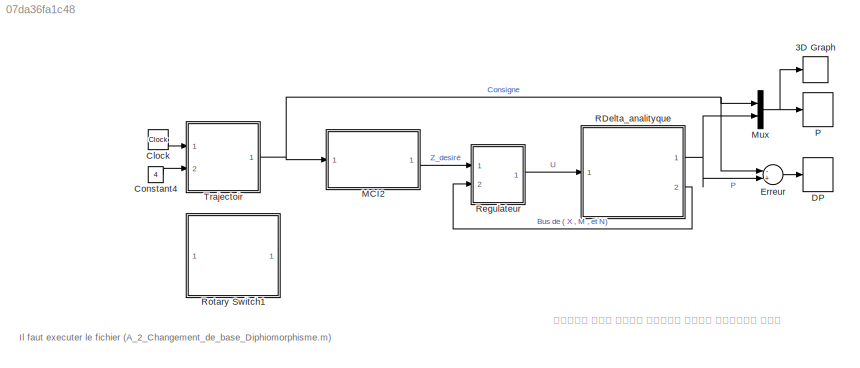
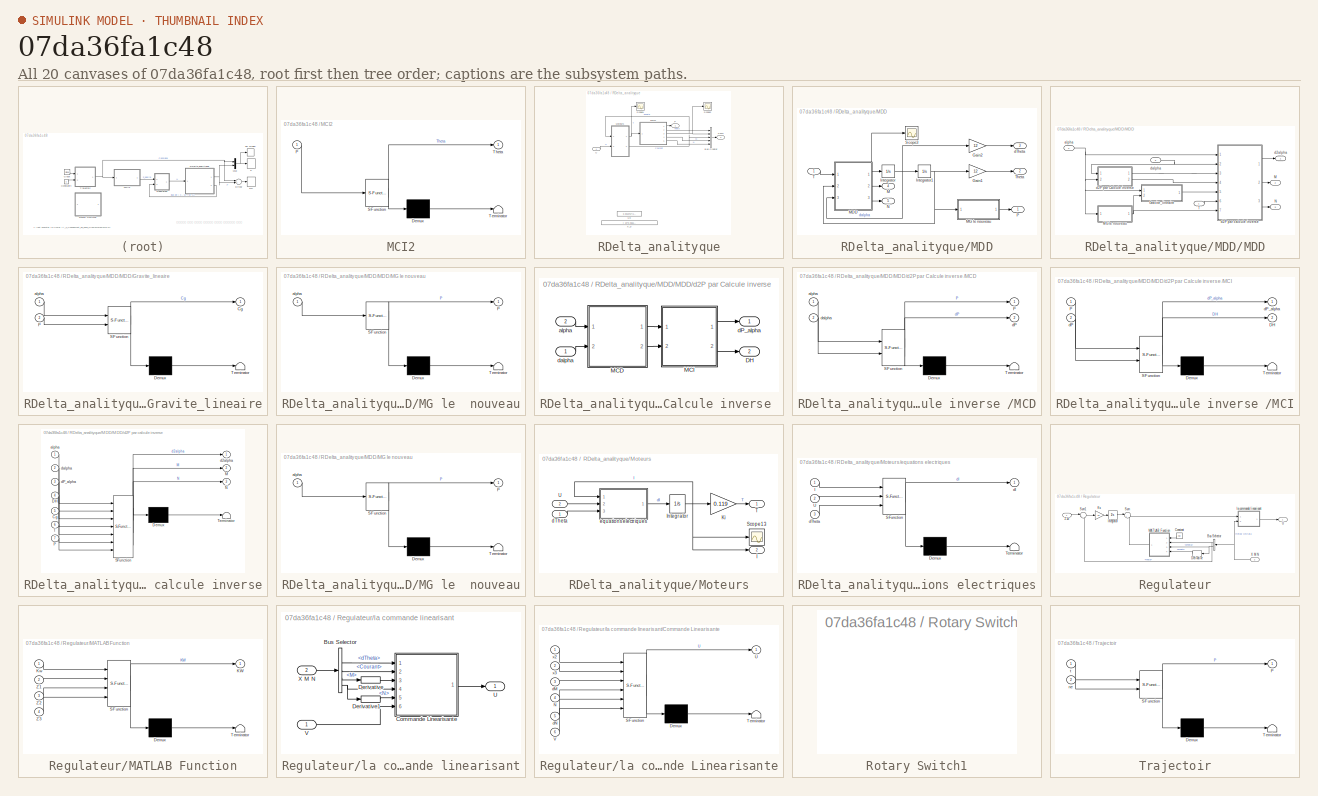
[diagram: thumbnail index - all 20 canvases of the model, root first then tree order]
MODEL slx_07da36fa1c48
KIND model
CONFIG AbsTol = auto
CONFIG FixedStep = auto
CONFIG MaxStep = 0.001
CONFIG MinStep = auto
CONFIG RelTol = 1e-3
CONFIG SampleTimeConstraint = Unconstrained
CONFIG Solver = ode45
CONFIG SolverMode = Auto
CONFIG SolverName = ode45
CONFIG StartTime = 0.0
CONFIG StopTime = 15
BLOCK [S-Function] 3D Graph
  CopyFcn = sfun3d([],[],[],'CopyBlock')
  DeleteFcn = sfun3d([],[],[],'DeleteBlock')
  FunctionName = sfun3d
  LoadFcn = sfun3d([],[],[],'LoadBlock')
  NameChangeFcn = sfun3d([],[],[],'NameChange')
  Parameters = ax,T,np,cp,gd,ls,mk
  Ports = [1]
  StartFcn = sfun3d([],[],[],'Start')
  StopFcn = sfun3d([],[],[],'Stop')
BLOCK [Clock] Clock
BLOCK [Constant] Constant4
  Value = 4
BLOCK [TimeScope] DP
  DefaultConfigurationName = spbscopes.TimeScopeBlockCfg
  NumInputPorts = 1
  Ports = [1]
  ScopeSpecificationString = spbscopes.TimeScopeBlockCfg('CurrentConfiguration', extmgr.ConfigurationSet(extmgr.Configuration('Core','General UI',true,'FigureColor',[1 1 1]),extmgr.Configuration('Core','Source UI',true),extmgr.Configuration('Sources','WiredSimulink',true,'DataLoggingVariableName','ScopeData1'),extmgr.Configuration('Visuals','Time Domain',true,'DisplayPropertyDefaults',struct('MinYLimReal','-0.00521338','MaxYL...<+2470ch>
  UserDataPersistent = on
BLOCK [Sum] Erreur
  InputSameDT = off
  Inputs = -+
  OutDataTypeStr = Inherit: Inherit via internal rule
  Ports = [2, 1]
  SaturateOnIntegerOverflow = off
BLOCK [SubSystem] MCI2
  ErrorFcn = Stateflow.Translate.translate
  PermitHierarchicalResolution = ExplicitOnly
  Ports = [1, 1]
  RequestExecContextInheritance = off
  SFBlockType = MATLAB Function
  TreatAsAtomicUnit = on
BLOCK [Demux] MCI2/ Demux 
  Outputs = 1
  Ports = [1, 1]
BLOCK [S-Function] MCI2/ SFunction 
  EnableBusSupport = on
  FunctionName = sf_sfun
  PortCounts = [1 2]
  Ports = [1, 2]
  Tag = Stateflow S-Function Commande_3_Changement_de_base_et_diffeomorphisme_ 2
BLOCK [Terminator] MCI2/ Terminator 
BLOCK [Inport] MCI2/P
  IconDisplay = Port number
BLOCK [Outport] MCI2/Theta
  IconDisplay = Port number
BLOCK [Mux] Mux
  DisplayOption = bar
  Inputs = 2
  Ports = [2, 1]
BLOCK [TimeScope] P
  DefaultConfigurationName = spbscopes.TimeScopeBlockCfg
  NumInputPorts = 1
  Ports = [1]
  ScopeSpecificationString = spbscopes.TimeScopeBlockCfg('CurrentConfiguration', extmgr.ConfigurationSet(extmgr.Configuration('Core','General UI',true,'FigureColor',[1 1 1]),extmgr.Configuration('Core','Source UI',true),extmgr.Configuration('Sources','WiredSimulink',true),extmgr.Configuration('Visuals','Time Domain',true,'DisplayPropertyDefaults',struct('MinYLimReal','-0.362505','MaxYLimReal','0.262501','YLabelReal','position...<+2495ch>
  UserDataPersistent = on
BLOCK [SubSystem] RDelta_analityque
  Ports = [1, 2]
  RequestExecContextInheritance = off
BLOCK [BusCreator] RDelta_analityque/Bus Creator
  DisplayOption = bar
  Inputs = 5
  Ports = [5, 1]
BLOCK [SubSystem] RDelta_analityque/MDD
  Ports = [1, 5]
  RequestExecContextInheritance = off
BLOCK [Gain] RDelta_analityque/MDD/Gain1
  Gain = 12
  OutDataTypeStr = Inherit: Inherit via internal rule
  ParamDataTypeStr = Inherit: Inherit via internal rule
  SaturateOnIntegerOverflow = off
BLOCK [Gain] RDelta_analityque/MDD/Gain2
  Gain = 12
  OutDataTypeStr = Inherit: Inherit via internal rule
  ParamDataTypeStr = Inherit: Inherit via internal rule
  SaturateOnIntegerOverflow = off
BLOCK [Integrator] RDelta_analityque/MDD/Integrator
  InitialCondition = [0;0;0]
  Ports = [1, 1]
BLOCK [Integrator] RDelta_analityque/MDD/Integrator1
  InitialCondition = 0.8*[1;1;1]/12
  Ports = [1, 1]
BLOCK [Outport] RDelta_analityque/MDD/M
  IconDisplay = Port number
  Port = 4
BLOCK [SubSystem] RDelta_analityque/MDD/MDD
  Ports = [3, 3]
  RequestExecContextInheritance = off
BLOCK [SubSystem] RDelta_analityque/MDD/MDD/Gravite_lineaire
  ErrorFcn = Stateflow.Translate.translate
  PermitHierarchicalResolution = ExplicitOnly
  Ports = [2, 1]
  RequestExecContextInheritance = off
  SFBlockType = MATLAB Function
  TreatAsAtomicUnit = on
BLOCK [Demux] RDelta_analityque/MDD/MDD/Gravite_lineaire/ Demux 
  Outputs = 1
  Ports = [1, 1]
BLOCK [S-Function] RDelta_analityque/MDD/MDD/Gravite_lineaire/ SFunction 
  EnableBusSupport = on
  FunctionName = sf_sfun
  PortCounts = [2 2]
  Ports = [2, 2]
  Tag = Stateflow S-Function Commande_3_Changement_de_base_et_diffeomorphisme_ 8
BLOCK [Terminator] RDelta_analityque/MDD/MDD/Gravite_lineaire/ Terminator 
BLOCK [Outport] RDelta_analityque/MDD/MDD/Gravite_lineaire/Cg
  IconDisplay = Port number
BLOCK [Inport] RDelta_analityque/MDD/MDD/Gravite_lineaire/P
  IconDisplay = Port number
  Port = 2
BLOCK [Inport] RDelta_analityque/MDD/MDD/Gravite_lineaire/alpha
  IconDisplay = Port number
BLOCK [Outport] RDelta_analityque/MDD/MDD/M
  IconDisplay = Port number
  Port = 2
BLOCK [SubSystem] RDelta_analityque/MDD/MDD/MG le  nouveau
  ErrorFcn = Stateflow.Translate.translate
  PermitHierarchicalResolution = ExplicitOnly
  Ports = [1, 1]
  RequestExecContextInheritance = off
  SFBlockType = MATLAB Function
  TreatAsAtomicUnit = on
BLOCK [Demux] RDelta_analityque/MDD/MDD/MG le  nouveau/ Demux 
  Outputs = 1
  Ports = [1, 1]
BLOCK [S-Function] RDelta_analityque/MDD/MDD/MG le  nouveau/ SFunction 
  EnableBusSupport = on
  FunctionName = sf_sfun
  PortCounts = [1 2]
  Ports = [1, 2]
  Tag = Stateflow S-Function Commande_3_Changement_de_base_et_diffeomorphisme_ 1
BLOCK [Terminator] RDelta_analityque/MDD/MDD/MG le  nouveau/ Terminator 
BLOCK [Outport] RDelta_analityque/MDD/MDD/MG le  nouveau/P
  IconDisplay = Port number
BLOCK [Inport] RDelta_analityque/MDD/MDD/MG le  nouveau/alpha
  IconDisplay = Port number
BLOCK [Outport] RDelta_analityque/MDD/MDD/N
  IconDisplay = Port number
  Port = 3
BLOCK [Inport] RDelta_analityque/MDD/MDD/T
  IconDisplay = Port number
BLOCK [Inport] RDelta_analityque/MDD/MDD/alpha
  IconDisplay = Port number
  Port = 2
BLOCK [SubSystem] RDelta_analityque/MDD/MDD/d2P par Calcule inverse 
  Ports = [2, 2]
  RequestExecContextInheritance = off
BLOCK [Outport] RDelta_analityque/MDD/MDD/d2P par Calcule inverse /DH
  IconDisplay = Port number
  Port = 2
BLOCK [SubSystem] RDelta_analityque/MDD/MDD/d2P par Calcule inverse /MCD
  ErrorFcn = Stateflow.Translate.translate
  PermitHierarchicalResolution = ExplicitOnly
  Ports = [2, 2]
  RequestExecContextInheritance = off
  SFBlockType = MATLAB Function
  TreatAsAtomicUnit = on
BLOCK [Demux] RDelta_analityque/MDD/MDD/d2P par Calcule inverse /MCD/ Demux 
  Outputs = 1
  Ports = [1, 1]
BLOCK [S-Function] RDelta_analityque/MDD/MDD/d2P par Calcule inverse /MCD/ SFunction 
  EnableBusSupport = on
  FunctionName = sf_sfun
  PortCounts = [2 3]
  Ports = [2, 3]
  Tag = Stateflow S-Function Commande_3_Changement_de_base_et_diffeomorphisme_ 3
BLOCK [Terminator] RDelta_analityque/MDD/MDD/d2P par Calcule inverse /MCD/ Terminator 
BLOCK [Outport] RDelta_analityque/MDD/MDD/d2P par Calcule inverse /MCD/P
  IconDisplay = Port number
BLOCK [Inport] RDelta_analityque/MDD/MDD/d2P par Calcule inverse /MCD/alpha
  IconDisplay = Port number
BLOCK [Outport] RDelta_analityque/MDD/MDD/d2P par Calcule inverse /MCD/dP
  IconDisplay = Port number
  Port = 2
BLOCK [Inport] RDelta_analityque/MDD/MDD/d2P par Calcule inverse /MCD/dalpha
  IconDisplay = Port number
  Port = 2
BLOCK [SubSystem] RDelta_analityque/MDD/MDD/d2P par Calcule inverse /MCI
  ErrorFcn = Stateflow.Translate.translate
  PermitHierarchicalResolution = ExplicitOnly
  Ports = [2, 2]
  RequestExecContextInheritance = off
  SFBlockType = MATLAB Function
  TreatAsAtomicUnit = on
BLOCK [Demux] RDelta_analityque/MDD/MDD/d2P par Calcule inverse /MCI/ Demux 
  Outputs = 1
  Ports = [1, 1]
BLOCK [S-Function] RDelta_analityque/MDD/MDD/d2P par Calcule inverse /MCI/ SFunction 
  EnableBusSupport = on
  FunctionName = sf_sfun
  PortCounts = [2 3]
  Ports = [2, 3]
  Tag = Stateflow S-Function Commande_3_Changement_de_base_et_diffeomorphisme_ 14
BLOCK [Terminator] RDelta_analityque/MDD/MDD/d2P par Calcule inverse /MCI/ Terminator 
BLOCK [Outport] RDelta_analityque/MDD/MDD/d2P par Calcule inverse /MCI/DH
  IconDisplay = Port number
  Port = 2
BLOCK [Inport] RDelta_analityque/MDD/MDD/d2P par Calcule inverse /MCI/P
  IconDisplay = Port number
BLOCK [Inport] RDelta_analityque/MDD/MDD/d2P par Calcule inverse /MCI/dP
  IconDisplay = Port number
  Port = 2
BLOCK [Outport] RDelta_analityque/MDD/MDD/d2P par Calcule inverse /MCI/dP_alpha
  IconDisplay = Port number
BLOCK [Inport] RDelta_analityque/MDD/MDD/d2P par Calcule inverse /alpha
  IconDisplay = Port number
  Port = 2
BLOCK [Outport] RDelta_analityque/MDD/MDD/d2P par Calcule inverse /dP_alpha
  IconDisplay = Port number
BLOCK [Inport] RDelta_analityque/MDD/MDD/d2P par Calcule inverse /dalpha
  IconDisplay = Port number
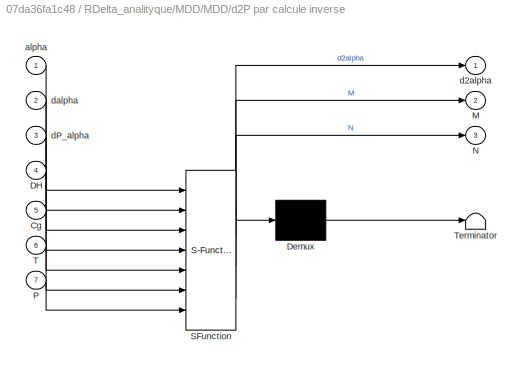
BLOCK [SubSystem] RDelta_analityque/MDD/MDD/d2P par calcule inverse
  ErrorFcn = Stateflow.Translate.translate
  PermitHierarchicalResolution = ExplicitOnly
  Ports = [7, 3]
  RequestExecContextInheritance = off
  SFBlockType = MATLAB Function
  TreatAsAtomicUnit = on
BLOCK [Demux] RDelta_analityque/MDD/MDD/d2P par calcule inverse/ Demux 
  Outputs = 1
  Ports = [1, 1]
BLOCK [S-Function] RDelta_analityque/MDD/MDD/d2P par calcule inverse/ SFunction 
  EnableBusSupport = on
  FunctionName = sf_sfun
  PortCounts = [7 4]
  Ports = [7, 4]
  Tag = Stateflow S-Function Commande_3_Changement_de_base_et_diffeomorphisme_ 15
BLOCK [Terminator] RDelta_analityque/MDD/MDD/d2P par calcule inverse/ Terminator 
BLOCK [Inport] RDelta_analityque/MDD/MDD/d2P par calcule inverse/Cg
  IconDisplay = Port number
  Port = 5
BLOCK [Inport] RDelta_analityque/MDD/MDD/d2P par calcule inverse/DH
  IconDisplay = Port number
  Port = 4
BLOCK [Outport] RDelta_analityque/MDD/MDD/d2P par calcule inverse/M
  IconDisplay = Port number
  Port = 2
BLOCK [Outport] RDelta_analityque/MDD/MDD/d2P par calcule inverse/N
  IconDisplay = Port number
  Port = 3
BLOCK [Inport] RDelta_analityque/MDD/MDD/d2P par calcule inverse/P
  IconDisplay = Port number
  Port = 7
BLOCK [Inport] RDelta_analityque/MDD/MDD/d2P par calcule inverse/T
  IconDisplay = Port number
  Port = 6
BLOCK [Inport] RDelta_analityque/MDD/MDD/d2P par calcule inverse/alpha
  IconDisplay = Port number
BLOCK [Outport] RDelta_analityque/MDD/MDD/d2P par calcule inverse/d2alpha
  IconDisplay = Port number
BLOCK [Inport] RDelta_analityque/MDD/MDD/d2P par calcule inverse/dP_alpha
  IconDisplay = Port number
  Port = 3
BLOCK [Inport] RDelta_analityque/MDD/MDD/d2P par calcule inverse/dalpha
  IconDisplay = Port number
  Port = 2
BLOCK [Outport] RDelta_analityque/MDD/MDD/d2alpha
  IconDisplay = Port number
BLOCK [Inport] RDelta_analityque/MDD/MDD/dalpha
  IconDisplay = Port number
  Port = 3
BLOCK [SubSystem] RDelta_analityque/MDD/MG le  nouveau
  ErrorFcn = Stateflow.Translate.translate
  PermitHierarchicalResolution = ExplicitOnly
  Ports = [1, 1]
  RequestExecContextInheritance = off
  SFBlockType = MATLAB Function
  TreatAsAtomicUnit = on
BLOCK [Demux] RDelta_analityque/MDD/MG le  nouveau/ Demux 
  Outputs = 1
  Ports = [1, 1]
BLOCK [S-Function] RDelta_analityque/MDD/MG le  nouveau/ SFunction 
  EnableBusSupport = on
  FunctionName = sf_sfun
  PortCounts = [1 2]
  Ports = [1, 2]
  Tag = Stateflow S-Function Commande_3_Changement_de_base_et_diffeomorphisme_ 16
BLOCK [Terminator] RDelta_analityque/MDD/MG le  nouveau/ Terminator 
BLOCK [Outport] RDelta_analityque/MDD/MG le  nouveau/P
  IconDisplay = Port number
BLOCK [Inport] RDelta_analityque/MDD/MG le  nouveau/alpha
  IconDisplay = Port number
BLOCK [Outport] RDelta_analityque/MDD/N
  IconDisplay = Port number
  Port = 5
BLOCK [Outport] RDelta_analityque/MDD/P
  IconDisplay = Port number
BLOCK [Scope] RDelta_analityque/MDD/Scope3
  Floating = off
  LimitDataPoints = off
  NumInputPorts = 1
  Ports = [1]
  SaveName = ScopeData2
  TimeRange = 2.077341948455237
  YMax = 0.00275
  YMin = 0.00075
BLOCK [Inport] RDelta_analityque/MDD/T
  IconDisplay = Port number
BLOCK [Outport] RDelta_analityque/MDD/Theta
  IconDisplay = Port number
  Port = 2
BLOCK [Outport] RDelta_analityque/MDD/dTheta
  IconDisplay = Port number
  Port = 3
BLOCK [SubSystem] RDelta_analityque/Moteurs
  Ports = [2, 2]
  RequestExecContextInheritance = off
BLOCK [Outport] RDelta_analityque/Moteurs/I
  IconDisplay = Port number
  Port = 2
BLOCK [Integrator] RDelta_analityque/Moteurs/Integrator
  InitialCondition = 0*[1;1;1]
  Ports = [1, 1]
BLOCK [Gain] RDelta_analityque/Moteurs/Ki
  Gain = 0.119
  OutDataTypeStr = Inherit: Inherit via internal rule
  ParamDataTypeStr = Inherit: Inherit via internal rule
  SaturateOnIntegerOverflow = off
BLOCK [Scope] RDelta_analityque/Moteurs/Scope13
  Floating = off
  LimitDataPoints = off
  NumInputPorts = 1
  Ports = [1]
  SaveName = ScopeData24
  TimeRange = 0.507510643892459
  YMax = 1000
  YMin = -1000
BLOCK [Outport] RDelta_analityque/Moteurs/T
  IconDisplay = Port number
BLOCK [Inport] RDelta_analityque/Moteurs/U
  IconDisplay = Port number
  Port = 2
BLOCK [Inport] RDelta_analityque/Moteurs/dTheta
  IconDisplay = Port number
BLOCK [SubSystem] RDelta_analityque/Moteurs/equations electriques
  ErrorFcn = Stateflow.Translate.translate
  PermitHierarchicalResolution = ExplicitOnly
  Ports = [3, 1]
  RequestExecContextInheritance = off
  SFBlockType = MATLAB Function
  TreatAsAtomicUnit = on
BLOCK [Demux] RDelta_analityque/Moteurs/equations electriques/ Demux 
  Outputs = 1
  Ports = [1, 1]
BLOCK [S-Function] RDelta_analityque/Moteurs/equations electriques/ SFunction 
  EnableBusSupport = on
  FunctionName = sf_sfun
  PortCounts = [3 2]
  Ports = [3, 2]
  Tag = Stateflow S-Function Commande_3_Changement_de_base_et_diffeomorphisme_ 26
BLOCK [Terminator] RDelta_analityque/Moteurs/equations electriques/ Terminator 
BLOCK [Inport] RDelta_analityque/Moteurs/equations electriques/I
  IconDisplay = Port number
BLOCK [Inport] RDelta_analityque/Moteurs/equations electriques/U
  IconDisplay = Port number
  Port = 2
BLOCK [Outport] RDelta_analityque/Moteurs/equations electriques/dI
  IconDisplay = Port number
BLOCK [Inport] RDelta_analityque/Moteurs/equations electriques/dTheta
  IconDisplay = Port number
  Port = 3
BLOCK [Outport] RDelta_analityque/P
  IconDisplay = Port number
BLOCK [Scope] RDelta_analityque/Scope1
  Floating = off
  LimitDataPoints = off
  NumInputPorts = 1
  Ports = [1]
  SaveName = ScopeData3
  YMax = 0.175
  YMin = -0.2
BLOCK [Scope] RDelta_analityque/Scope2
  Floating = off
  LimitDataPoints = off
  NumInputPorts = 1
  Ports = [1]
  SaveName = ScopeData7
  YMax = 0.774531
  YMin = 0.774525
BLOCK [Inport] RDelta_analityque/U
  IconDisplay = Port number
BLOCK [Constant] RDelta_analityque/U0
  Value = 0.001041*[1;1;1]
BLOCK [Outport] RDelta_analityque/XMN
  IconDisplay = Port number
  Port = 2
BLOCK [Constant] RDelta_analityque/X_0
  Value = [ 10*0.0651*[1;1;1] ;[0;0;0];-0.1041*[1;1;1] ]
BLOCK [SubSystem] Regulateur
  Ports = [2, 1]
  RequestExecContextInheritance = off
BLOCK [BusSelector] Regulateur/Bus Selector
  OutputSignals = Theta,dTheta
  Ports = [1, 2]
BLOCK [Constant] Regulateur/Constant
  Value = Kw
BLOCK [Derivative] Regulateur/Derivative
BLOCK [Integrator] Regulateur/Integrator
  Ports = [1, 1]
BLOCK [Gain] Regulateur/Ks
  Gain = Ks
  OutDataTypeStr = Inherit: Inherit via internal rule
  ParamDataTypeStr = Inherit: Inherit via internal rule
  SaturateOnIntegerOverflow = off
BLOCK [SubSystem] Regulateur/MATLAB Function
  ErrorFcn = Stateflow.Translate.translate
  PermitHierarchicalResolution = ExplicitOnly
  Ports = [4, 1]
  RequestExecContextInheritance = off
  SFBlockType = MATLAB Function
  TreatAsAtomicUnit = on
BLOCK [Demux] Regulateur/MATLAB Function/ Demux 
  Outputs = 1
  Ports = [1, 1]
BLOCK [S-Function] Regulateur/MATLAB Function/ SFunction 
  EnableBusSupport = on
  FunctionName = sf_sfun
  PortCounts = [4 2]
  Ports = [4, 2]
  Tag = Stateflow S-Function Commande_3_Changement_de_base_et_diffeomorphisme_ 5
BLOCK [Terminator] Regulateur/MATLAB Function/ Terminator 
BLOCK [Outport] Regulateur/MATLAB Function/KW
  IconDisplay = Port number
BLOCK [Inport] Regulateur/MATLAB Function/Kw
  IconDisplay = Port number
BLOCK [Inport] Regulateur/MATLAB Function/Z1
  IconDisplay = Port number
  Port = 2
BLOCK [Inport] Regulateur/MATLAB Function/Z2
  IconDisplay = Port number
  Port = 3
BLOCK [Inport] Regulateur/MATLAB Function/Z3
  IconDisplay = Port number
  Port = 4
BLOCK [Sum] Regulateur/Sum
  IconShape = round
  InputSameDT = off
  Inputs = |+-
  OutDataTypeStr = Inherit: Inherit via internal rule
  Ports = [2, 1]
  SaturateOnIntegerOverflow = off
BLOCK [Sum] Regulateur/Sum1
  IconShape = round
  InputSameDT = off
  Inputs = |+-
  OutDataTypeStr = Inherit: Inherit via internal rule
  Ports = [2, 1]
  SaturateOnIntegerOverflow = off
BLOCK [Outport] Regulateur/U
  IconDisplay = Port number
BLOCK [Inport] Regulateur/X M N
  IconDisplay = Port number
  Port = 2
BLOCK [Inport] Regulateur/Z1d
  IconDisplay = Port number
BLOCK [SubSystem] Regulateur/la commande linearisant
  Ports = [2, 1]
  RequestExecContextInheritance = off
BLOCK [BusSelector] Regulateur/la commande linearisant/Bus Selector
  OutputSignals = Theta,dTheta,Courant,M,N
  Ports = [1, 5]
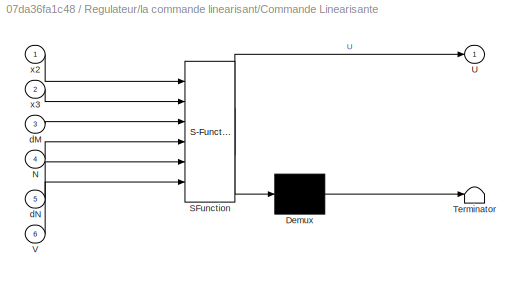
BLOCK [SubSystem] Regulateur/la commande linearisant/Commande Linearisante
  ErrorFcn = Stateflow.Translate.translate
  PermitHierarchicalResolution = ExplicitOnly
  Ports = [6, 1]
  RequestExecContextInheritance = off
  SFBlockType = MATLAB Function
  TreatAsAtomicUnit = on
BLOCK [Demux] Regulateur/la commande linearisant/Commande Linearisante/ Demux 
  Outputs = 1
  Ports = [1, 1]
BLOCK [S-Function] Regulateur/la commande linearisant/Commande Linearisante/ SFunction 
  EnableBusSupport = on
  FunctionName = sf_sfun
  PortCounts = [6 2]
  Ports = [6, 2]
  Tag = Stateflow S-Function Commande_3_Changement_de_base_et_diffeomorphisme_ 4
BLOCK [Terminator] Regulateur/la commande linearisant/Commande Linearisante/ Terminator 
BLOCK [Inport] Regulateur/la commande linearisant/Commande Linearisante/N
  IconDisplay = Port number
  Port = 4
BLOCK [Outport] Regulateur/la commande linearisant/Commande Linearisante/U
  IconDisplay = Port number
BLOCK [Inport] Regulateur/la commande linearisant/Commande Linearisante/V
  IconDisplay = Port number
  Port = 6
BLOCK [Inport] Regulateur/la commande linearisant/Commande Linearisante/dM
  IconDisplay = Port number
  Port = 3
BLOCK [Inport] Regulateur/la commande linearisant/Commande Linearisante/dN
  IconDisplay = Port number
  Port = 5
BLOCK [Inport] Regulateur/la commande linearisant/Commande Linearisante/x2
  IconDisplay = Port number
BLOCK [Inport] Regulateur/la commande linearisant/Commande Linearisante/x3
  IconDisplay = Port number
  Port = 2
BLOCK [Derivative] Regulateur/la commande linearisant/Derivative
BLOCK [Derivative] Regulateur/la commande linearisant/Derivative1
BLOCK [Outport] Regulateur/la commande linearisant/U
  IconDisplay = Port number
BLOCK [Inport] Regulateur/la commande linearisant/V
  IconDisplay = Port number
BLOCK [Inport] Regulateur/la commande linearisant/X M N
  IconDisplay = Port number
  Port = 2
BLOCK [SubSystem] Rotary Switch1
  DialogController = hmiCreateDDGDialog
  IsWebBlock = on
  MaskHideContents = on
  Ports = []
  RequestExecContextInheritance = off
BLOCK [SubSystem] Trajectoir
  ErrorFcn = Stateflow.Translate.translate
  PermitHierarchicalResolution = ExplicitOnly
  Ports = [2, 1]
  RequestExecContextInheritance = off
  SFBlockType = MATLAB Function
  TreatAsAtomicUnit = on
BLOCK [Demux] Trajectoir/ Demux 
  Outputs = 1
  Ports = [1, 1]
BLOCK [S-Function] Trajectoir/ SFunction 
  EnableBusSupport = on
  FunctionName = sf_sfun
  PortCounts = [2 2]
  Ports = [2, 2]
  Tag = Stateflow S-Function Commande_3_Changement_de_base_et_diffeomorphisme_ 23
BLOCK [Terminator] Trajectoir/ Terminator 
BLOCK [Outport] Trajectoir/P
  IconDisplay = Port number
BLOCK [Inport] Trajectoir/ne
  IconDisplay = Port number
  Port = 2
BLOCK [Inport] Trajectoir/t
  IconDisplay = Port number
ANNOTATION (root): Il faut executer le fichier (A_2_Changement_de_base_Diphiomorphisme.m)
ANNOTATION (root): الحمد لله حمدا كثيرا طيبا مباركا فيه
LINE Clock:1 -> Trajectoir:1
LINE Constant4:1 -> Trajectoir:2
LINE Erreur:1 -> DP:1
LINE MCI2:1 -> Regulateur:1
NET Mux:1 -> 3D Graph:1, P:1
LINE RDelta_analityque/Bus Creator:1 -> RDelta_analityque/XMN:1
LINE RDelta_analityque/MDD/Gain1:1 -> RDelta_analityque/MDD/Theta:1
LINE RDelta_analityque/MDD/Gain2:1 -> RDelta_analityque/MDD/dTheta:1
NET RDelta_analityque/MDD/Integrator1:1 -> RDelta_analityque/MDD/Gain1:1, RDelta_analityque/MDD/MDD:2, RDelta_analityque/MDD/MG le  nouveau:1
NET RDelta_analityque/MDD/Integrator:1 -> RDelta_analityque/MDD/Gain2:1, RDelta_analityque/MDD/Integrator1:1, RDelta_analityque/MDD/MDD:3
LINE RDelta_analityque/MDD/MDD/Gravite_lineaire:1 -> RDelta_analityque/MDD/MDD/d2P par calcule inverse:5
NET RDelta_analityque/MDD/MDD/MG le  nouveau:1 -> RDelta_analityque/MDD/MDD/Gravite_lineaire:2, RDelta_analityque/MDD/MDD/d2P par calcule inverse:7
LINE RDelta_analityque/MDD/MDD/T:1 -> RDelta_analityque/MDD/MDD/d2P par calcule inverse:6
NET RDelta_analityque/MDD/MDD/alpha:1 -> RDelta_analityque/MDD/MDD/Gravite_lineaire:1, RDelta_analityque/MDD/MDD/MG le  nouveau:1, RDelta_analityque/MDD/MDD/d2P par Calcule inverse :2, RDelta_analityque/MDD/MDD/d2P par calcule inverse:1
LINE RDelta_analityque/MDD/MDD/d2P par Calcule inverse /MCD:1 -> RDelta_analityque/MDD/MDD/d2P par Calcule inverse /MCI:1
LINE RDelta_analityque/MDD/MDD/d2P par Calcule inverse /MCD:2 -> RDelta_analityque/MDD/MDD/d2P par Calcule inverse /MCI:2
LINE RDelta_analityque/MDD/MDD/d2P par Calcule inverse /MCI:1 -> RDelta_analityque/MDD/MDD/d2P par Calcule inverse /dP_alpha:1
LINE RDelta_analityque/MDD/MDD/d2P par Calcule inverse /MCI:2 -> RDelta_analityque/MDD/MDD/d2P par Calcule inverse /DH:1
LINE RDelta_analityque/MDD/MDD/d2P par Calcule inverse /alpha:1 -> RDelta_analityque/MDD/MDD/d2P par Calcule inverse /MCD:1
LINE RDelta_analityque/MDD/MDD/d2P par Calcule inverse /dalpha:1 -> RDelta_analityque/MDD/MDD/d2P par Calcule inverse /MCD:2
LINE RDelta_analityque/MDD/MDD/d2P par Calcule inverse :1 -> RDelta_analityque/MDD/MDD/d2P par calcule inverse:3
LINE RDelta_analityque/MDD/MDD/d2P par Calcule inverse :2 -> RDelta_analityque/MDD/MDD/d2P par calcule inverse:4
LINE RDelta_analityque/MDD/MDD/d2P par calcule inverse:1 -> RDelta_analityque/MDD/MDD/d2alpha:1
LINE RDelta_analityque/MDD/MDD/d2P par calcule inverse:2 -> RDelta_analityque/MDD/MDD/M:1
LINE RDelta_analityque/MDD/MDD/d2P par calcule inverse:3 -> RDelta_analityque/MDD/MDD/N:1
NET RDelta_analityque/MDD/MDD/dalpha:1 -> RDelta_analityque/MDD/MDD/d2P par Calcule inverse :1, RDelta_analityque/MDD/MDD/d2P par calcule inverse:2
NET RDelta_analityque/MDD/MDD:1 -> RDelta_analityque/MDD/Integrator:1, RDelta_analityque/MDD/Scope3:1
LINE RDelta_analityque/MDD/MDD:2 -> RDelta_analityque/MDD/M:1
LINE RDelta_analityque/MDD/MDD:3 -> RDelta_analityque/MDD/N:1
LINE RDelta_analityque/MDD/MG le  nouveau:1 -> RDelta_analityque/MDD/P:1
LINE RDelta_analityque/MDD/T:1 -> RDelta_analityque/MDD/MDD:1
LINE RDelta_analityque/MDD:1 -> RDelta_analityque/P:1
LINE RDelta_analityque/MDD:2 -> RDelta_analityque/Bus Creator:1
NET RDelta_analityque/MDD:3 -> RDelta_analityque/Bus Creator:2, RDelta_analityque/Moteurs:1, RDelta_analityque/Scope2:1
LINE RDelta_analityque/MDD:4 -> RDelta_analityque/Bus Creator:4
LINE RDelta_analityque/MDD:5 -> RDelta_analityque/Bus Creator:5
NET RDelta_analityque/Moteurs/Integrator:1 -> RDelta_analityque/Moteurs/I:1, RDelta_analityque/Moteurs/Ki:1, RDelta_analityque/Moteurs/Scope13:1, RDelta_analityque/Moteurs/equations electriques:1
LINE RDelta_analityque/Moteurs/Ki:1 -> RDelta_analityque/Moteurs/T:1
LINE RDelta_analityque/Moteurs/U:1 -> RDelta_analityque/Moteurs/equations electriques:2
LINE RDelta_analityque/Moteurs/dTheta:1 -> RDelta_analityque/Moteurs/equations electriques:3
LINE RDelta_analityque/Moteurs/equations electriques:1 -> RDelta_analityque/Moteurs/Integrator:1
NET RDelta_analityque/Moteurs:1 -> RDelta_analityque/MDD:1, RDelta_analityque/Scope1:1
LINE RDelta_analityque/Moteurs:2 -> RDelta_analityque/Bus Creator:3
LINE RDelta_analityque/U:1 -> RDelta_analityque/Moteurs:2
NET RDelta_analityque:1 -> Erreur:2, Mux:2
LINE RDelta_analityque:2 -> Regulateur:2
NET Regulateur/Bus Selector:1 -> Regulateur/MATLAB Function:2, Regulateur/Sum1:2
NET Regulateur/Bus Selector:2 -> Regulateur/Derivative:1, Regulateur/MATLAB Function:3
LINE Regulateur/Constant:1 -> Regulateur/MATLAB Function:1
LINE Regulateur/Derivative:1 -> Regulateur/MATLAB Function:4
LINE Regulateur/Integrator:1 -> Regulateur/Sum:1
LINE Regulateur/Ks:1 -> Regulateur/Integrator:1
LINE Regulateur/MATLAB Function:1 -> Regulateur/Sum:2
LINE Regulateur/Sum1:1 -> Regulateur/Ks:1
LINE Regulateur/Sum:1 -> Regulateur/la commande linearisant:1
NET Regulateur/X M N:1 -> Regulateur/Bus Selector:1, Regulateur/la commande linearisant:2
LINE Regulateur/Z1d:1 -> Regulateur/Sum1:1
LINE Regulateur/la commande linearisant/Bus Selector:2 -> Regulateur/la commande linearisant/Commande Linearisante:1
LINE Regulateur/la commande linearisant/Bus Selector:3 -> Regulateur/la commande linearisant/Commande Linearisante:2
LINE Regulateur/la commande linearisant/Bus Selector:4 -> Regulateur/la commande linearisant/Derivative:1
NET Regulateur/la commande linearisant/Bus Selector:5 -> Regulateur/la commande linearisant/Commande Linearisante:4, Regulateur/la commande linearisant/Derivative1:1
LINE Regulateur/la commande linearisant/Commande Linearisante:1 -> Regulateur/la commande linearisant/U:1
LINE Regulateur/la commande linearisant/Derivative1:1 -> Regulateur/la commande linearisant/Commande Linearisante:5
LINE Regulateur/la commande linearisant/Derivative:1 -> Regulateur/la commande linearisant/Commande Linearisante:3
LINE Regulateur/la commande linearisant/V:1 -> Regulateur/la commande linearisant/Commande Linearisante:6
LINE Regulateur/la commande linearisant/X M N:1 -> Regulateur/la commande linearisant/Bus Selector:1
LINE Regulateur/la commande linearisant:1 -> Regulateur/U:1
LINE Regulateur:1 -> RDelta_analityque:1
NET Trajectoir:1 -> Erreur:1, MCI2:1, Mux:1
note: NET lines group one-source signal fan-out (src -> all destinations, sorted); 1:1 wires keep LINE
CHART RDelta_analityque/MDD/MDD/MG le  nouveau states=1 transitions=1
  STATE_LABEL 'eML_blk_kernel()'
  STATE_LABEL 'SCRIPT:\nfunction P =MGD(alpha)\n\n\nalpha1=alpha(1) ;alpha2=alpha(2) ; alpha3=alpha(3) ;\n\n%les constantes\nl1 = 0.19992; \nl2 = 0.334; \nr = 0.126; \nphi2 = 2*pi/3;\nphi3 = 4*pi/3;\n\n%% Les points :\nC1=[r+l1*cos(alpha1) ; 0 ; -l1*sin(alpha1) ]; \nC2=[(r+l1*cos(alpha2))*cos(phi2) ; (r+l1*cos(alpha2))*sin(phi2) ; -l1*sin(alpha2) ]; \nC3=[(r+l1*cos(alpha3))*cos(phi3) ; (r+l1*cos(alpha3))*sin(phi3) ; -l1*sin(alp...<+470ch>'
CHART MCI2 states=1 transitions=1
  STATE_LABEL 'eML_blk_kernel()'
  STATE_LABEL "SCRIPT:\n    function Theta = fcn(P)\n\n    l1 = 0.19992; \n    l2 = 0.334; \n    r = 0.126; \n    phi2 = 2*pi/3;\n    phi3 = 4*pi/3;\n\n    %% Expression de P dans Ri\n    % l'expression P1 dP1 et d2P1 ne se changent pas\n    A2=[cos(phi2) sin(phi2) 0\n        -sin(phi2) cos(phi2) 0\n        0            0      1 ]; \n    A3=[cos(phi3) sin(phi3) 0\n        -sin(phi3) cos(phi3) 0\n        0            0      1 ];...<+888ch>"
CHART RDelta_analityque/MDD/MDD/d2P par Calcule inverse
/MCD states=1 transitions=1
  STATE_LABEL 'eML_blk_kernel()'
  STATE_LABEL 'SCRIPT:\nfunction [P,dP]= fcn(alpha,dalpha)\n\n% alpha=alpha*pi/180;\n% dalpha=dalpha*pi/180;\n% d2alpha=d2alpha*pi/180;\nalpha1=alpha(1) ;alpha2=alpha(2) ; alpha3=alpha(3) ;\ndalpha1=dalpha(1) ;dalpha2=dalpha(2) ; dalpha3=dalpha(3) ;\n\n%% Remarque: une letrre majiscule signifie un point ou un vecteur \n% tandit que un miniscule signifie la norme\n%% les constantes\nl1 = 0.19992; \nl2 = 0.334; \nr = 0.126; \nph...<+1967ch>'
CHART Regulateur/la commande
 linearisant/Commande Linearisante states=1 transitions=1
  STATE_LABEL 'eML_blk_kernel()'
  STATE_LABEL 'SCRIPT:\nfunction U = fcn(x2,x3,dM,N,dN,V)\n\n%% Mode glissant\n% Les Constantes des moteurs ;\nb1 = -1.1250e+03 ;\nb2 = -99.4718 ;\nb3 =833.3333 ;\n%Constantes du Reglage :\n\nU=(N\\(-dM-dN*x3+V)-b2*x2-b1*x3)/b3 ; \n          \n'
CHART Regulateur/MATLAB Function states=1 transitions=1
  STATE_LABEL 'eML_blk_kernel()'
  STATE_LABEL "SCRIPT:\nfunction KW = RE(Kw,Z1,Z2,Z3)\n\n% Les sous systemes correspendants aux moteurs 1,2 et 3\nw1 = [Z1(1);Z2(1);Z3(1)] ; \nw2 = [Z1(2);Z2(2);Z3(2)] ;\nw3 = [Z1(3);Z2(3);Z3(3)] ;\n% Les retour d'etat\nKW1 = Kw'*w1 ; KW2 = Kw'*w2 ; KW3 = Kw'*w3 ;\nKW= [KW1 ; KW2 ; KW3 ] ;\n"
CHART RDelta_analityque/MDD/MDD/Gravite_lineaire states=1 transitions=1
  STATE_LABEL 'eML_blk_kernel()'
  STATE_LABEL 'SCRIPT:\nfunction Cg = fcn(alpha,P)\n\n    alpha1=alpha(1) ;alpha2=alpha(2) ; alpha3=alpha(3) ;\n    \n%% les constantes:\nl1 = 0.19992; \nl2 = 0.334; \nr = 0.126; \nphi2 = 2*pi/3;\nphi3 = 4*pi/3;\nA2=[cos(phi2) sin(phi2) 0 \n     -sin(phi2) cos(phi2) 0\n        0            0            1 ]; \nA3=[cos(phi3) sin(phi3) 0\n     -sin(phi3) cos(phi3) 0\n          0            0          1 ];\ng = 9.98 ;\nmBras = 0.0836...<+1603ch>'
CHART RDelta_analityque/MDD/MDD/d2P par Calcule inverse
/MCI states=1 transitions=1
  STATE_LABEL 'eML_blk_kernel()'
  STATE_LABEL "SCRIPT:\n    function [dP_alpha,DH]= fcn(P,dP)\n\n    l1 = 0.19992; \n    l2 = 0.334; \n    r = 0.126; \n    phi2 = 2*pi/3;\n    phi3 = 4*pi/3;\n\n    %% Expression de P dans Ri\n    % l'expression P1 dP1 et d2P1 ne se changent pas\n    A2=[cos(phi2) sin(phi2) 0\n        -sin(phi2) cos(phi2) 0\n        0            0      1 ]; \n    A3=[cos(phi3) sin(phi3) 0\n        -sin(phi3) cos(phi3) 0\n        0            0...<+3608ch>"
CHART RDelta_analityque/MDD/MDD/d2P par calcule inverse states=1 transitions=1
  STATE_LABEL 'eML_blk_kernel()'
  STATE_LABEL 'SCRIPT:\nfunction [d2alpha, M,N]= fcn(alpha,dalpha, dP_alpha,DH,Cg,T,P)\n\nalpha1=alpha(1) ;alpha2=alpha(2) ; alpha3=alpha(3) ;\ndalpha1=dalpha(1) ;dalpha2=dalpha(2) ; dalpha3=dalpha(3) ;\n\n%% les constantes\n    l1 = 0.19992; \n    l2 = 0.334; \n    r = 0.126; \n    phi2 = 2*pi/3;\n    phi3 = 4*pi/3;\nA2=[cos(phi2) sin(phi2) 0\n    -sin(phi2) cos(phi2) 0\n    0            0      1 ]; \nA3=[cos(phi3) sin(phi3) ...<+3608ch>'
CHART RDelta_analityque/MDD/MG le  nouveau states=1 transitions=1
  STATE_LABEL 'eML_blk_kernel()'
  STATE_LABEL 'SCRIPT:\nfunction P =MGD(alpha)\n\n\nalpha1=alpha(1) ;alpha2=alpha(2) ; alpha3=alpha(3) ;\n\n%les constantes\nl1 = 0.19992; \nl2 = 0.334; \nr = 0.126; \nphi2 = 2*pi/3;\nphi3 = 4*pi/3;\n\n%% Les points :\nC1=[r+l1*cos(alpha1) ; 0 ; -l1*sin(alpha1) ]; \nC2=[(r+l1*cos(alpha2))*cos(phi2) ; (r+l1*cos(alpha2))*sin(phi2) ; -l1*sin(alpha2) ]; \nC3=[(r+l1*cos(alpha3))*cos(phi3) ; (r+l1*cos(alpha3))*sin(phi3) ; -l1*sin(alp...<+470ch>'
CHART Trajectoir states=1 transitions=1
  STATE_LABEL 'eML_blk_kernel()'
  STATE_LABEL "SCRIPT:\nfunction P = fcn(t,ne)\n\n%% Menu\n% 1 ==> Ligne horizontal\n% 2==>  Ligne suivant l'axe oz\n% 3==> Cercle\n% 4==> Ligne x=y\n z0=-0.08789 ; zpi=-0.3;\nB= (z0+zpi)/2 ; A= (z0-zpi)/2 ; \nf = 1; f2 = 5 ;\nR=0.2;\n%% vers le Plan Z=-0.3\nif (t<pi/f && (ne == 1 || ne == 3 ||  ne == 0 || ne == 4 || ne == 5 ||  ne == 6))\nn= 2 ; \nelseif( (ne == 4 || ne == 5 ||  ne == 6)  &&  (t<3*pi/2/f) ) % vers le point (0...<+3608ch>"
CHART RDelta_analityque/Moteurs/equations electriques states=1 transitions=1
  STATE_LABEL 'eML_blk_kernel()'
  STATE_LABEL 'SCRIPT:\nfunction dI = fcn(I,U,dTheta)\n\n% Les Constantes des moteurs ;\n\nb1 = -1.1250e+03 ;\nb2 = -99.4718 ;\nb3 =833.3333 ;\n\ndI = b2*dTheta + b1*I + b3*U ;\n'
